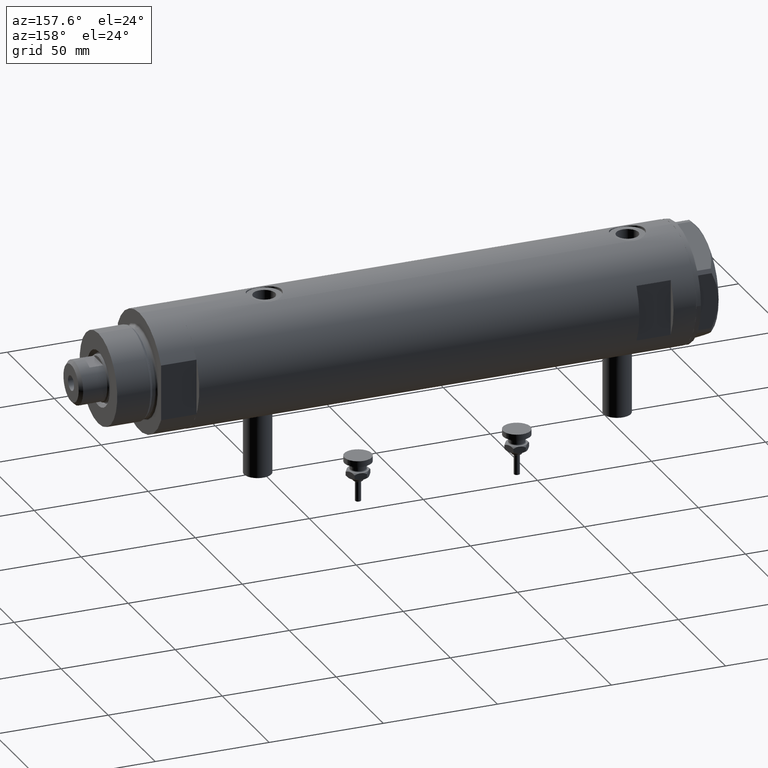
[diagram: clean part render]
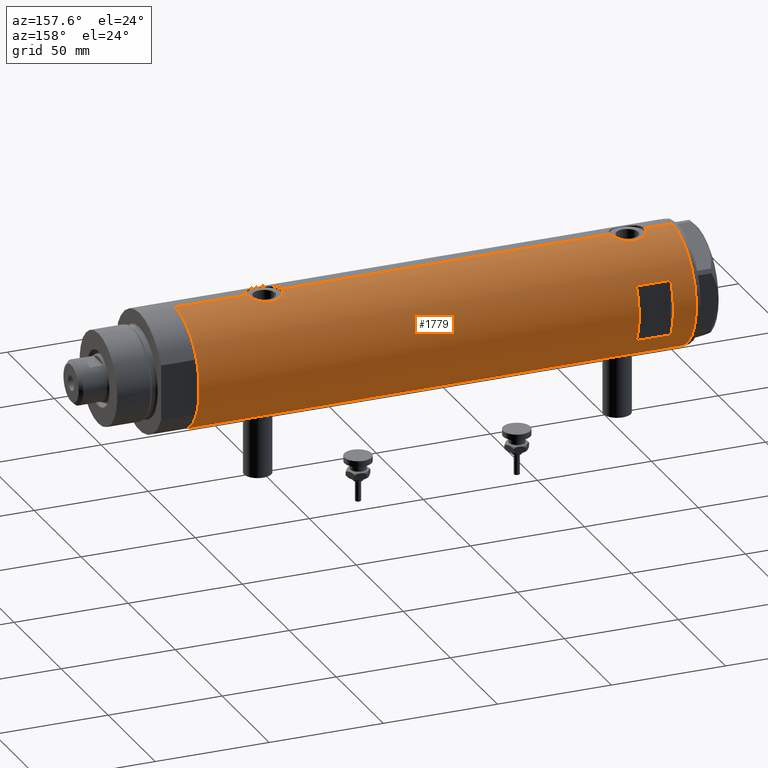
[diagram: same view with one face highlighted and labeled with its STEP entity id]
A machine part, auxiliary view. The second image highlights one B-rep face of the part: STEP entity #1779.
In plain terms, the highlighted cylindrical surface (partial cylindrical patch) has radius 26 mm, axis along (-1, -0, 0).
Its self-contained STEP definition (entity closure, byte-faithful):
#21 = CARTESIAN_POINT ( 'NONE',  ( -12.12435565298214080, 23.00000000000000355, 98.95000000000001705 ) ) ;
#42 = CIRCLE ( 'NONE', #1766, 26.00000000000000355 ) ;
#109 = CARTESIAN_POINT ( 'NONE',  ( -25.92257874449351718, 2.014648337067152184, -66.73003581636324100 ) ) ;
#145 = CARTESIAN_POINT ( 'NONE',  ( -26.00000000000000355, 1.227111019500118713E-15, -66.40000000000000568 ) ) ;
#179 = CARTESIAN_POINT ( 'NONE',  ( -25.27696731428695642, 6.089059008147561514, -71.22583693040516550 ) ) ;
#292 = CARTESIAN_POINT ( 'NONE',  ( -25.95208098418916975, 1.628413954368976846, -78.69806792170716392 ) ) ;
#304 = CARTESIAN_POINT ( 'NONE',  ( -26.00000000000000355, 3.184077527325983904E-15, -78.90000000000000568 ) ) ;
#329 = CARTESIAN_POINT ( 'NONE',  ( -25.52275868012768356, 4.960454986366445773, 81.14238370593368188 ) ) ;
#358 = CARTESIAN_POINT ( 'NONE',  ( 25.92799636947105668, 1.948138538329400093, 82.20322312211784777 ) ) ;
#366 = CARTESIAN_POINT ( 'NONE',  ( 24.97016856345951297, 7.245430721349229941, -71.70303040919394277 ) ) ;
#374 = EDGE_CURVE ( 'NONE', #609, #3577, #1414, .T. ) ;
#384 = CARTESIAN_POINT ( 'NONE',  ( 24.90976107960112529, 7.450765568638835212, 90.43882869351465104 ) ) ;
#392 = CARTESIAN_POINT ( 'NONE',  ( 25.94484652078418208, 1.709678645892024340, -77.05665346759174383 ) ) ;
#397 = CARTESIAN_POINT ( 'NONE',  ( -26.00000000000000355, 3.184081677783118585E-15, 108.9500000000000028 ) ) ;
#410 = CARTESIAN_POINT ( 'NONE',  ( 25.11550258961939619, 6.725017566862045548, 92.77928477806018748 ) ) ;
#413 = EDGE_CURVE ( 'NONE', #1022, #5285, #544, .T. ) ;
#420 = CARTESIAN_POINT ( 'NONE',  ( -25.99009688862344092, 0.8219492608955324409, 91.15915939226573528 ) ) ;
#422 = CARTESIAN_POINT ( 'NONE',  ( 26.00000000000001066, 0.2455784580650491045, -62.25000000000000000 ) ) ;
#457 = CARTESIAN_POINT ( 'NONE',  ( -25.23766275406408965, 6.249830297096023557, 85.36191904555117560 ) ) ;
#484 = DIRECTION ( 'NONE',  ( 1.000000000000000000, 0.000000000000000000, 0.000000000000000000 ) ) ;
#488 = EDGE_CURVE ( 'NONE', #5285, #6051, #3272, .T. ) ;
#507 = CARTESIAN_POINT ( 'NONE',  ( 25.97197502027376714, 1.230965554787594840, 96.85240824498376355 ) ) ;
#532 = AXIS2_PLACEMENT_3D ( 'NONE', #5348, #4924, #484 ) ;
#536 = CARTESIAN_POINT ( 'NONE',  ( 12.12435565298214080, 23.00000000000000355, 98.95000000000001705 ) ) ;
#544 = LINE ( 'NONE', #5884, #4281 ) ;
#609 = VERTEX_POINT ( 'NONE', #3044 ) ;
#612 = CARTESIAN_POINT ( 'NONE',  ( -25.81251897318926325, 3.135439098787735190, -67.22800821914826486 ) ) ;
#620 = DIRECTION ( 'NONE',  ( 0.000000000000000000, 0.000000000000000000, 1.000000000000000000 ) ) ;
#627 = CIRCLE ( 'NONE', #2983, 26.00000000000000355 ) ;
#643 = EDGE_CURVE ( 'NONE', #2773, #3577, #5437, .T. ) ;
#647 = CARTESIAN_POINT ( 'NONE',  ( -25.38675822915647728, 5.615881323213574028, -69.87693218337989265 ) ) ;
#654 = LINE ( 'NONE', #3686, #4918 ) ;
#703 = CARTESIAN_POINT ( 'NONE',  ( -25.95015815577422558, 1.621168830448743048, -66.61041429560181371 ) ) ;
#739 = LINE ( 'NONE', #2695, #2484 ) ;
#740 = CARTESIAN_POINT ( 'NONE',  ( -25.57167265924274702, 4.701795585128869526, -76.77276288310035568 ) ) ;
#746 = DIRECTION ( 'NONE',  ( 0.000000000000000000, 0.000000000000000000, 1.000000000000000000 ) ) ;
#749 = CARTESIAN_POINT ( 'NONE',  ( 25.17636585680005368, 6.493453152855892085, -65.98900750337199383 ) ) ;
#771 = CARTESIAN_POINT ( 'NONE',  ( -25.28673619335057055, 6.048783215285170378, -74.27550990348181870 ) ) ;
#782 = ORIENTED_EDGE ( 'NONE', *, *, #5178, .F. ) ;
#799 = CARTESIAN_POINT ( 'NONE',  ( -25.98789693408478740, 0.8193301824842001979, -78.84948980265349405 ) ) ;
#802 = ORIENTED_EDGE ( 'NONE', *, *, #3345, .T. ) ;
#805 = CARTESIAN_POINT ( 'NONE',  ( -25.67095236150574777, 4.133649689219788925, 89.65535228274261215 ) ) ;
#814 = CARTESIAN_POINT ( 'NONE',  ( -26.00000000000000355, 1.227111019500118713E-15, 91.20000000000000284 ) ) ;
#864 = CARTESIAN_POINT ( 'NONE',  ( 25.03487248886523275, 7.018875226450804306, 86.79576782607934149 ) ) ;
#871 = CARTESIAN_POINT ( 'NONE',  ( -25.28673619335055278, 6.048783215285170378, 83.32449009651818983 ) ) ;
#897 = CARTESIAN_POINT ( 'NONE',  ( -25.90661719257679607, 2.209805098346973029, 90.79988745781523107 ) ) ;
#899 = CARTESIAN_POINT ( 'NONE',  ( 25.89067367629246164, 2.424883365422559223, -62.63594795494831402 ) ) ;
#1017 = CARTESIAN_POINT ( 'NONE',  ( -26.00000000000000355, 3.184081677783118585E-15, -108.9500000000000028 ) ) ;
#1022 = VERTEX_POINT ( 'NONE', #536 ) ;
#1027 = CARTESIAN_POINT ( 'NONE',  ( 25.93077501166307641, 1.957027822413552220, -62.49302141437592439 ) ) ;
#1056 = CARTESIAN_POINT ( 'NONE',  ( 25.98255381630416849, 0.9836221648041321153, 96.88933098058195981 ) ) ;
#1092 = CARTESIAN_POINT ( 'NONE',  ( -25.59680708126579773, 4.563450671387936808, 80.67456050020027192 ) ) ;
#1093 = CARTESIAN_POINT ( 'NONE',  ( -26.00000000000001066, 0.4145874687851194285, -66.40000000000000568 ) ) ;
#1226 = CARTESIAN_POINT ( 'NONE',  ( 25.08669247833291394, 6.831361936037332327, -66.64462260596206988 ) ) ;
#1261 = CARTESIAN_POINT ( 'NONE',  ( 25.31017500740584580, 5.951503630041877102, -65.17950407362599208 ) ) ;
#1290 = CARTESIAN_POINT ( 'NONE',  ( -25.24784248027028966, 6.209126813737962713, 84.12731838311941601 ) ) ;
#1292 = CARTESIAN_POINT ( 'NONE',  ( 25.59528664075983428, 4.573671112500307778, -75.69909503516727511 ) ) ;
#1310 = CARTESIAN_POINT ( 'NONE',  ( 25.63006864069250668, 4.375159448492152769, 83.35345588241116843 ) ) ;
#1342 = CARTESIAN_POINT ( 'NONE',  ( 25.88814720404044323, 2.420758939209245675, 82.34711713171545000 ) ) ;
#1357 = CARTESIAN_POINT ( 'NONE',  ( 25.88814720404043968, 2.420758939209245231, -76.85288286828455284 ) ) ;
#1359 = VERTEX_POINT ( 'NONE', #3698 ) ;
#1377 = CARTESIAN_POINT ( 'NONE',  ( -26.00000000000000355, 0.2043916521039003675, -78.90000000000000568 ) ) ;
#1384 = CARTESIAN_POINT ( 'NONE',  ( -25.95015815577422913, 1.621168830448742826, 90.98958570439819482 ) ) ;
#1388 = CARTESIAN_POINT ( 'NONE',  ( 26.00000000000000355, -3.975028449552882818E-20, -62.24999999999999289 ) ) ;
#1404 = CARTESIAN_POINT ( 'NONE',  ( 24.97016856345952363, 7.245430721349229053, 87.49696959080610270 ) ) ;
#1405 = DIRECTION ( 'NONE',  ( 0.000000000000000000, 1.000000000000000000, -4.803849625781927035E-15 ) ) ;
#1414 = B_SPLINE_CURVE_WITH_KNOTS ( 'NONE', 3,
 ( #145, #1093, #5992, #5477, #703, #109, #2153, #3079, #612, #2087, #1606, #5539, #3558, #5023, #647, #2605, #3114, #4543, #179, #2123, #4064, #3332, #6175, #771, #4181, #1724, #4688, #3206, #2751, #4724, #2724, #740, #5759, #3715, #6109, #3235, #3300, #2218, #292, #4273, #799, #2243, #1377, #5151 ),
 .UNSPECIFIED., .F., .F.,
 ( 4, 2, 2, 2, 2, 2, 2, 2, 2, 2, 2, 2, 2, 2, 2, 2, 2, 2, 2, 2, 2, 4 ),
 ( 1.191872608207982896E-18, 0.001225774033668401188, 0.001838661050502596794, 0.002451548067336792400, 0.003677322101005198792, 0.004903096134673604750, 0.006128870168342011142, 0.007354644202010417534, 0.007967531218844622898, 0.008580418235678826527, 0.009806192269347190418, 0.01103196630301555604, 0.01225774033668391994, 0.01287062735351812356, 0.01348351437035232546, 0.01409640138718652735, 0.01470928840402073098, 0.01593506243768915906, 0.01716083647135759060, 0.01838661050502601868, 0.01899949752186023619, 0.01961238453869445023 ),
 .UNSPECIFIED. ) ;
#1467 = VERTEX_POINT ( 'NONE', #397 ) ;
#1478 = CARTESIAN_POINT ( 'NONE',  ( -25.98057228346869607, 1.024901789261878138, 78.78119414145170651 ) ) ;
#1480 = CARTESIAN_POINT ( 'NONE',  ( 25.97197502027376004, 1.230965554787593730, -62.34759175501625350 ) ) ;
#1485 = VERTEX_POINT ( 'NONE', #21 ) ;
#1500 = CARTESIAN_POINT ( 'NONE',  ( 25.72868876879095978, 3.768709330223698473, 95.95267486870062612 ) ) ;
#1508 = CARTESIAN_POINT ( 'NONE',  ( -25.92432690655987315, 2.018143994254077978, 79.02070577177285315 ) ) ;
#1544 = ORIENTED_EDGE ( 'NONE', *, *, #374, .F. ) ;
#1592 = EDGE_CURVE ( 'NONE', #3640, #1467, #3565, .T. ) ;
#1606 = CARTESIAN_POINT ( 'NONE',  ( -25.67095236150574067, 4.133649689219787149, -67.94464771725739638 ) ) ;
#1624 = FACE_BOUND ( 'NONE', #1632, .T. ) ;
#1632 = EDGE_LOOP ( 'NONE', ( #5749, #5793, #1973, #2715 ) ) ;
#1641 = LINE ( 'NONE', #2668, #4003 ) ;
#1696 = ORIENTED_EDGE ( 'NONE', *, *, #2625, .F. ) ;
#1707 = CARTESIAN_POINT ( 'NONE',  ( 24.89471231507667071, 7.500219916954801391, -69.26121773116975078 ) ) ;
#1724 = CARTESIAN_POINT ( 'NONE',  ( -25.36894112891956965, 5.694149517195237209, -75.23482505198309411 ) ) ;
#1732 = CARTESIAN_POINT ( 'NONE',  ( 25.20855488770172315, 6.367749707222650990, -65.77997776959041687 ) ) ;
#1740 = VECTOR ( 'NONE', #2100, 1000.000000000000000 ) ;
#1757 = CARTESIAN_POINT ( 'NONE',  ( 25.17424625143662809, 6.506691718592108487, 85.68758373966277020 ) ) ;
#1766 = AXIS2_PLACEMENT_3D ( 'NONE', #2547, #5638, #2319 ) ;
#1768 = CARTESIAN_POINT ( 'NONE',  ( 25.63006864069251378, 4.375159448492150105, -75.84654411758884862 ) ) ;
#1779 = ADVANCED_FACE ( 'NONE', ( #1624, #2654 ), #2173, .T. ) ;
#1792 = EDGE_CURVE ( 'NONE', #6071, #4497, #5592, .T. ) ;
#1794 = CARTESIAN_POINT ( 'NONE',  ( 26.00000000000000355, 1.142179864233347086E-15, 81.94999999999998863 ) ) ;
#1799 = CARTESIAN_POINT ( 'NONE',  ( -25.96182217530153480, 1.422664245316465959, 91.03935273092393743 ) ) ;
#1830 = CARTESIAN_POINT ( 'NONE',  ( 24.95233689475078265, 7.306396477445190385, -71.46103813146667960 ) ) ;
#1854 = CARTESIAN_POINT ( 'NONE',  ( 25.59528664075983428, 4.573671112500310443, 83.50090496483274194 ) ) ;
#1889 = CARTESIAN_POINT ( 'NONE',  ( 25.52465069878074644, 4.952713637311411787, 83.81255139184743541 ) ) ;
#1900 = CARTESIAN_POINT ( 'NONE',  ( 25.98255381630415073, 0.9836221648041368892, -62.31066901941806435 ) ) ;
#1959 = CARTESIAN_POINT ( 'NONE',  ( 25.59685363299823280, 4.579266302355757823, -63.79027931897347514 ) ) ;
#1973 = ORIENTED_EDGE ( 'NONE', *, *, #413, .F. ) ;
#1984 = DIRECTION ( 'NONE',  ( -0.000000000000000000, -0.000000000000000000, -1.000000000000000000 ) ) ;
#2020 = CARTESIAN_POINT ( 'NONE',  ( -25.99759026373432391, 0.4091325989570679389, 78.71000109955099333 ) ) ;
#2023 = EDGE_CURVE ( 'NONE', #2572, #6089, #3501, .T. ) ;
#2087 = CARTESIAN_POINT ( 'NONE',  ( -25.72105193281917934, 3.813738527046908189, -67.68166308900568140 ) ) ;
#2100 = DIRECTION ( 'NONE',  ( 0.000000000000000000, 0.000000000000000000, 1.000000000000000000 ) ) ;
#2123 = CARTESIAN_POINT ( 'NONE',  ( -25.24766879991036816, 6.209837761082653174, -71.83150430970304967 ) ) ;
#2124 = CARTESIAN_POINT ( 'NONE',  ( 12.12435565298213724, 23.00000000000000355, 83.95000000000003126 ) ) ;
#2142 = EDGE_CURVE ( 'NONE', #6051, #1485, #654, .T. ) ;
#2153 = CARTESIAN_POINT ( 'NONE',  ( -25.90661719257679252, 2.209805098346972585, -66.80011254218482009 ) ) ;
#2169 = EDGE_CURVE ( 'NONE', #609, #3141, #1641, .T. ) ;
#2173 = CYLINDRICAL_SURFACE ( 'NONE', #5633, 26.00000000000000355 ) ;
#2218 = CARTESIAN_POINT ( 'NONE',  ( -25.92432690655987670, 2.018143994254067319, -78.57929422822714116 ) ) ;
#2243 = CARTESIAN_POINT ( 'NONE',  ( -25.99759026373432391, 0.4091325989570675503, -78.88999890044902941 ) ) ;
#2253 = CARTESIAN_POINT ( 'NONE',  ( 26.00000000000000355, 0.4983968644076023913, -77.25000000000000000 ) ) ;
#2312 = CARTESIAN_POINT ( 'NONE',  ( 25.48882460966380847, 5.133289275481220493, 83.97656476402089254 ) ) ;
#2317 = CARTESIAN_POINT ( 'NONE',  ( -25.52242378584899640, 4.965907353613394193, 88.76719602921738783 ) ) ;
#2319 = DIRECTION ( 'NONE',  ( 1.000000000000000000, -5.329070518200751394E-15, 0.000000000000000000 ) ) ;
#2337 = CARTESIAN_POINT ( 'NONE',  ( 25.00820649268565532, 7.115348876445601434, 91.87184000475454582 ) ) ;
#2344 = CARTESIAN_POINT ( 'NONE',  ( 24.90951684770587704, 7.451587374037550227, -70.73395604521196844 ) ) ;
#2365 = CARTESIAN_POINT ( 'NONE',  ( 25.72923282622329211, 3.765147152416750131, 82.94514424215292081 ) ) ;
#2369 = EDGE_CURVE ( 'NONE', #3640, #3141, #3682, .T. ) ;
#2376 = CARTESIAN_POINT ( 'NONE',  ( -25.72105193281917579, 3.813738527046907745, 89.91833691099431292 ) ) ;
#2378 = EDGE_CURVE ( 'NONE', #4497, #1467, #3393, .T. ) ;
#2401 = CARTESIAN_POINT ( 'NONE',  ( 26.00000000000000355, -3.975030973907779525E-20, 96.95000000000000284 ) ) ;
#2438 = CARTESIAN_POINT ( 'NONE',  ( -25.85449082491264150, 2.772892880050696007, 79.33390702514675752 ) ) ;
#2462 = CARTESIAN_POINT ( 'NONE',  ( 25.59685363299822569, 4.579266302355758711, 95.40972068102654191 ) ) ;
#2463 = DIRECTION ( 'NONE',  ( 0.000000000000000000, 4.625929269271486900E-15, 1.000000000000000000 ) ) ;
#2484 = VECTOR ( 'NONE', #4633, 1000.000000000000000 ) ;
#2533 = B_SPLINE_CURVE_WITH_KNOTS ( 'NONE', 3,
 ( #1794, #2880, #3741, #6272, #358, #1342, #3831, #3768, #2365, #1310, #1854, #1889, #2312, #5789, #5725, #1757, #3299, #864, #4755, #1404, #5305, #4820, #4783, #5274, #384, #4180, #2337, #4272, #410, #6235, #3800, #5758, #6137, #3714, #5663, #3425, #2462, #1500, #4465, #4404, #5372, #507, #1056, #3923, #5339, #2401 ),
 .UNSPECIFIED., .F., .F.,
 ( 4, 2, 2, 2, 2, 2, 2, 2, 2, 2, 2, 2, 2, 2, 2, 2, 2, 2, 2, 2, 2, 2, 4 ),
 ( 1.109123384753006195E-18, 0.001473395154583141816, 0.002210092731874708279, 0.002946790309166274525, 0.004420185463749423498, 0.005156883041040996249, 0.005893580618332569000, 0.007366975772915686747, 0.008840370927498805362, 0.009577068504790344286, 0.01031376608208188494, 0.01178716123666492463, 0.01326055639124796431, 0.01473395154583100573, 0.01547064912312250649, 0.01620734670041400205, 0.01694404427770550628, 0.01768074185499700357, 0.01915413700957997734, 0.02062753216416295110, 0.02210092731874592140, 0.02283762489603740828, 0.02357432247332889169 ),
 .UNSPECIFIED. ) ;
#2547 = CARTESIAN_POINT ( 'NONE',  ( 0.000000000000000000, 0.000000000000000000, 98.95000000000001705 ) ) ;
#2572 = VERTEX_POINT ( 'NONE', #2635 ) ;
#2581 = CARTESIAN_POINT ( 'NONE',  ( -26.00000000000000355, 3.184081677783118585E-15, -108.9500000000000028 ) ) ;
#2594 = CARTESIAN_POINT ( 'NONE',  ( 26.00000000000000355, 0.000000000000000000, -108.9500000000000028 ) ) ;
#2605 = CARTESIAN_POINT ( 'NONE',  ( -25.33346170681504361, 5.849967696906721137, -70.44052947900497941 ) ) ;
#2625 = EDGE_CURVE ( 'NONE', #1359, #2735, #739, .T. ) ;
#2630 = CARTESIAN_POINT ( 'NONE',  ( -26.00000000000000355, 3.184081677783118585E-15, -108.9500000000000028 ) ) ;
#2635 = CARTESIAN_POINT ( 'NONE',  ( 26.00000000000000355, -3.975028449552882818E-20, -62.24999999999999289 ) ) ;
#2654 = FACE_OUTER_BOUND ( 'NONE', #4207, .T. ) ;
#2657 = DIRECTION ( 'NONE',  ( 0.000000000000000000, 0.000000000000000000, 1.000000000000000000 ) ) ;
#2668 = CARTESIAN_POINT ( 'NONE',  ( -26.00000000000000355, 3.184081677783118585E-15, -108.9500000000000028 ) ) ;
#2695 = CARTESIAN_POINT ( 'NONE',  ( 26.00000000000000355, 0.000000000000000000, -108.9500000000000028 ) ) ;
#2715 = ORIENTED_EDGE ( 'NONE', *, *, #5096, .F. ) ;
#2724 = CARTESIAN_POINT ( 'NONE',  ( -25.52275868012767646, 4.960454986366444885, -76.45761629406632665 ) ) ;
#2733 = CARTESIAN_POINT ( 'NONE',  ( 25.98569222077104257, 0.9879514382926418703, -77.20081846687564564 ) ) ;
#2735 = VERTEX_POINT ( 'NONE', #6174 ) ;
#2748 = EDGE_CURVE ( 'NONE', #6089, #6071, #2533, .T. ) ;
#2751 = CARTESIAN_POINT ( 'NONE',  ( -25.45277932469920756, 5.307477387851102790, -75.95672800165310434 ) ) ;
#2758 = CARTESIAN_POINT ( 'NONE',  ( -25.38875076695534361, 5.605452563035131064, 82.17814099175892295 ) ) ;
#2773 = VERTEX_POINT ( 'NONE', #1017 ) ;
#2794 = CARTESIAN_POINT ( 'NONE',  ( -25.57189498399054983, 4.707763994471525493, 89.08090281055548587 ) ) ;
#2827 = CARTESIAN_POINT ( 'NONE',  ( -25.36894112891957320, 5.694149517195235433, 82.36517494801691441 ) ) ;
#2855 = CARTESIAN_POINT ( 'NONE',  ( -25.85406084573621754, 2.777003695811651962, 90.56412841326093144 ) ) ;
#2857 = CARTESIAN_POINT ( 'NONE',  ( 25.78997056644823971, 3.329333406239046056, -63.01165191566149559 ) ) ;
#2880 = CARTESIAN_POINT ( 'NONE',  ( 26.00000000000000000, 0.4983968644076025023, 81.95000000000000284 ) ) ;
#2893 = CARTESIAN_POINT ( 'NONE',  ( -25.33346170681504361, 5.849967696906720249, 87.15947052099507175 ) ) ;
#2983 = AXIS2_PLACEMENT_3D ( 'NONE', #5808, #4905, #4394 ) ;
#3044 = CARTESIAN_POINT ( 'NONE',  ( -26.00000000000000355, 1.227111019500118713E-15, -66.40000000000000568 ) ) ;
#3079 = CARTESIAN_POINT ( 'NONE',  ( -25.85406084573620689, 2.777003695811651962, -67.03587158673903446 ) ) ;
#3114 = CARTESIAN_POINT ( 'NONE',  ( -25.31738333113900907, 5.918941409682878074, -70.63242077527678475 ) ) ;
#3141 = VERTEX_POINT ( 'NONE', #5656 ) ;
#3161 = DIRECTION ( 'NONE',  ( 0.000000000000000000, 0.000000000000000000, 1.000000000000000000 ) ) ;
#3180 = CARTESIAN_POINT ( 'NONE',  ( 25.11550258961939264, 6.725017566862044660, -66.42071522193982958 ) ) ;
#3206 = CARTESIAN_POINT ( 'NONE',  ( -25.43062364804611875, 5.412314182902751014, -75.78227648580933362 ) ) ;
#3230 = CARTESIAN_POINT ( 'NONE',  ( 26.00000000000000355, 0.000000000000000000, 108.9500000000000028 ) ) ;
#3235 = CARTESIAN_POINT ( 'NONE',  ( -25.81206132723605862, 3.139065735901515275, -78.06978769360878800 ) ) ;
#3241 = CARTESIAN_POINT ( 'NONE',  ( -25.31518616157687518, 5.930210831981638009, 82.93412882792975438 ) ) ;
#3243 = CARTESIAN_POINT ( 'NONE',  ( 25.38132706741445688, 5.649034551923791447, -74.70731952814048782 ) ) ;
#3272 = CIRCLE ( 'NONE', #3778, 26.00000000000000355 ) ;
#3299 = CARTESIAN_POINT ( 'NONE',  ( 25.11254978876589661, 6.737777305585169962, 86.11974648253587361 ) ) ;
#3300 = CARTESIAN_POINT ( 'NONE',  ( -25.85449082491265571, 2.772892880050684017, -78.26609297485326522 ) ) ;
#3332 = CARTESIAN_POINT ( 'NONE',  ( -25.23757896588369931, 6.250168635417630014, -73.05675308410499724 ) ) ;
#3345 = EDGE_CURVE ( 'NONE', #1359, #2773, #627, .T. ) ;
#3359 = ORIENTED_EDGE ( 'NONE', *, *, #2169, .T. ) ;
#3377 = VECTOR ( 'NONE', #2657, 1000.000000000000000 ) ;
#3390 = CARTESIAN_POINT ( 'NONE',  ( 0.000000000000000000, 0.000000000000000000, 83.95000000000011653 ) ) ;
#3393 = CIRCLE ( 'NONE', #532, 26.00000000000000355 ) ;
#3396 = CARTESIAN_POINT ( 'NONE',  ( -12.12435565298214080, 23.00000000000000355, 83.95000000000003126 ) ) ;
#3425 = CARTESIAN_POINT ( 'NONE',  ( 25.52590365620542912, 4.955152228772157663, 95.10123727588242559 ) ) ;
#3434 = CARTESIAN_POINT ( 'NONE',  ( -26.00000000000000000, 0.2043916521039007284, 78.69999999999998863 ) ) ;
#3438 = CARTESIAN_POINT ( 'NONE',  ( 25.72868876879095978, 3.768709330223699361, -63.24732513129934119 ) ) ;
#3501 = LINE ( 'NONE', #3534, #4911 ) ;
#3534 = CARTESIAN_POINT ( 'NONE',  ( 26.00000000000000355, 0.000000000000000000, -108.9500000000000028 ) ) ;
#3558 = CARTESIAN_POINT ( 'NONE',  ( -25.52242378584899640, 4.965907353613394193, -68.83280397078264912 ) ) ;
#3565 = LINE ( 'NONE', #2581, #1740 ) ;
#3576 = CARTESIAN_POINT ( 'NONE',  ( 0.000000000000000000, 0.000000000000000000, -108.9500000000000028 ) ) ;
#3577 = VERTEX_POINT ( 'NONE', #304 ) ;
#3640 = VERTEX_POINT ( 'NONE', #814 ) ;
#3660 = CARTESIAN_POINT ( 'NONE',  ( 24.90976107960112529, 7.450765568638834324, -68.76117130648536602 ) ) ;
#3682 = B_SPLINE_CURVE_WITH_KNOTS ( 'NONE', 3,
 ( #4315, #5767, #420, #1799, #1384, #5281, #897, #2855, #5734, #2376, #805, #2794, #2317, #6282, #4251, #2893, #4828, #6215, #3776, #5252, #457, #3864, #1290, #871, #3241, #2827, #2758, #4762, #5185, #4696, #329, #4222, #1092, #5920, #4961, #4988, #2438, #1508, #3997, #1478, #4375, #2020, #3434, #3898 ),
 .UNSPECIFIED., .F., .F.,
 ( 4, 2, 2, 2, 2, 2, 2, 2, 2, 2, 2, 2, 2, 2, 2, 2, 2, 2, 2, 2, 2, 4 ),
 ( 1.191872608207982896E-18, 0.001225774033668414415, 0.001838661050502624766, 0.002451548067336834901, 0.003677322101005254303, 0.004903096134673673272, 0.006128870168342093541, 0.007354644202010512943, 0.007967531218844704430, 0.008580418235678894182, 0.009806192269347313584, 0.01103196630301573472, 0.01225774033668415586, 0.01287062735351834561, 0.01348351437035253536, 0.01409640138718672858, 0.01470928840402092007, 0.01593506243768930131, 0.01716083647135768081, 0.01838661050502606725, 0.01899949752186025700, 0.01961238453869444676 ),
 .UNSPECIFIED. ) ;
#3686 = CARTESIAN_POINT ( 'NONE',  ( -12.12435565298214080, 23.00000000000000355, -108.9500000000000028 ) ) ;
#3689 = CARTESIAN_POINT ( 'NONE',  ( 25.27545867390323764, 6.096774941222101063, -65.37522593042032781 ) ) ;
#3698 = CARTESIAN_POINT ( 'NONE',  ( 26.00000000000000355, 0.000000000000000000, -108.9500000000000028 ) ) ;
#3714 = CARTESIAN_POINT ( 'NONE',  ( 25.38117076385347204, 5.641057083563605801, 94.39856579741848464 ) ) ;
#3715 = CARTESIAN_POINT ( 'NONE',  ( -25.67176285215958487, 4.128807479817783843, -77.35991598451124673 ) ) ;
#3741 = CARTESIAN_POINT ( 'NONE',  ( 25.98569222077104968, 0.9879514382926425364, 81.99918153312438562 ) ) ;
#3768 = CARTESIAN_POINT ( 'NONE',  ( 25.78922176490237916, 3.335318700939514880, 82.71449431233524763 ) ) ;
#3776 = CARTESIAN_POINT ( 'NONE',  ( -25.27696731428695998, 6.089059008147561514, 86.37416306959481460 ) ) ;
#3778 = AXIS2_PLACEMENT_3D ( 'NONE', #3390, #2463, #1405 ) ;
#3779 = CARTESIAN_POINT ( 'NONE',  ( 24.89484527721568696, 7.499778575171907491, -70.24550805482940063 ) ) ;
#3800 = CARTESIAN_POINT ( 'NONE',  ( 25.20855488770171604, 6.367749707222649214, 93.42002223040957176 ) ) ;
#3812 = CARTESIAN_POINT ( 'NONE',  ( 25.99652140603931727, 0.4914164889130587244, -62.26203179519543340 ) ) ;
#3831 = CARTESIAN_POINT ( 'NONE',  ( 25.86510134953875450, 2.654921787384018739, 82.43132938305093660 ) ) ;
#3842 = ORIENTED_EDGE ( 'NONE', *, *, #1792, .F. ) ;
#3857 = ORIENTED_EDGE ( 'NONE', *, *, #2748, .F. ) ;
#3864 = CARTESIAN_POINT ( 'NONE',  ( -25.23757896588369576, 6.250168635417627350, 84.54324691589501128 ) ) ;
#3867 = B_SPLINE_CURVE_WITH_KNOTS ( 'NONE', 3,
 ( #4733, #2253, #2733, #392, #4224, #1357, #5160, #4669, #4190, #1768, #1292, #5255, #5674, #3243, #6184, #4162, #4253, #4698, #5188, #366, #1830, #2344, #3779, #1707, #3660, #5606, #6116, #1226, #3180, #749, #1732, #3689, #1261, #5769, #5797, #4792, #1959, #3438, #2857, #899, #1027, #1480, #1900, #3812, #422, #1388 ),
 .UNSPECIFIED., .F., .F.,
 ( 4, 2, 2, 2, 2, 2, 2, 2, 2, 2, 2, 2, 2, 2, 2, 2, 2, 2, 2, 2, 2, 2, 4 ),
 ( 3.063710492572517602E-19, 0.001473395154583137480, 0.002210092731874702641, 0.002946790309166267153, 0.004420185463749410487, 0.005156883041040983238, 0.005893580618332555990, 0.007366975772915672870, 0.008840370927498791484, 0.009577068504790330408, 0.01031376608208186933, 0.01178716123666491075, 0.01326055639124795044, 0.01473395154583099012, 0.01547064912312249088, 0.01620734670041399164, 0.01694404427770549240, 0.01768074185499699316, 0.01915413700957996693, 0.02062753216416294069, 0.02210092731874591793, 0.02283762489603740134, 0.02357432247332888822 ),
 .UNSPECIFIED. ) ;
#3898 = CARTESIAN_POINT ( 'NONE',  ( -26.00000000000000355, 3.184077527313362130E-15, 78.69999999999998863 ) ) ;
#3923 = CARTESIAN_POINT ( 'NONE',  ( 25.99652140603930306, 0.4914164889130540614, 96.93796820480460497 ) ) ;
#3997 = CARTESIAN_POINT ( 'NONE',  ( -25.95208098418916975, 1.628413954368974625, 78.90193207829285882 ) ) ;
#4003 = VECTOR ( 'NONE', #4641, 1000.000000000000000 ) ;
#4064 = CARTESIAN_POINT ( 'NONE',  ( -25.23766275406408965, 6.249830297096023557, -72.23808095444880450 ) ) ;
#4112 = DIRECTION ( 'NONE',  ( 1.000000000000000000, 0.000000000000000000, 0.000000000000000000 ) ) ;
#4162 = CARTESIAN_POINT ( 'NONE',  ( 25.17424625143662098, 6.506691718592107598, -73.51241626033730370 ) ) ;
#4180 = CARTESIAN_POINT ( 'NONE',  ( 24.96662810169870284, 7.257932614256881187, 91.40297309526737024 ) ) ;
#4181 = CARTESIAN_POINT ( 'NONE',  ( -25.31518616157687518, 5.930210831981638009, -74.66587117207023994 ) ) ;
#4190 = CARTESIAN_POINT ( 'NONE',  ( 25.72923282622328500, 3.765147152416744802, -76.25485575784709624 ) ) ;
#4207 = EDGE_LOOP ( 'NONE', ( #802, #5346, #1544, #3359, #5149, #5482, #4787, #3842, #3857, #4808, #782, #1696 ) ) ;
#4222 = CARTESIAN_POINT ( 'NONE',  ( -25.57167265924275057, 4.701795585128869526, 80.82723711689963864 ) ) ;
#4224 = CARTESIAN_POINT ( 'NONE',  ( 25.92799636947105313, 1.948138538329398539, -76.99677687788214087 ) ) ;
#4251 = CARTESIAN_POINT ( 'NONE',  ( -25.38675822915647728, 5.615881323213574028, 87.72306781662007324 ) ) ;
#4253 = CARTESIAN_POINT ( 'NONE',  ( 25.11254978876589306, 6.737777305585169074, -73.08025351746414344 ) ) ;
#4272 = CARTESIAN_POINT ( 'NONE',  ( 25.08669247833291749, 6.831361936037331439, 92.55537739403790454 ) ) ;
#4273 = CARTESIAN_POINT ( 'NONE',  ( -25.98057228346869607, 1.024901789261876139, -78.81880585854824517 ) ) ;
#4281 = VECTOR ( 'NONE', #1984, 1000.000000000000000 ) ;
#4315 = CARTESIAN_POINT ( 'NONE',  ( -26.00000000000000355, 1.227111019500118713E-15, 91.20000000000000284 ) ) ;
#4375 = CARTESIAN_POINT ( 'NONE',  ( -25.98789693408479096, 0.8193301824841990877, 78.75051019734652868 ) ) ;
#4394 = DIRECTION ( 'NONE',  ( 1.000000000000000000, 0.000000000000000000, 0.000000000000000000 ) ) ;
#4404 = CARTESIAN_POINT ( 'NONE',  ( 25.89067367629247229, 2.424883365422557002, 96.56405204505172435 ) ) ;
#4465 = CARTESIAN_POINT ( 'NONE',  ( 25.78997056644825037, 3.329333406239041615, 96.18834808433848593 ) ) ;
#4497 = VERTEX_POINT ( 'NONE', #3230 ) ;
#4543 = CARTESIAN_POINT ( 'NONE',  ( -25.28915991580760192, 6.038390257328910771, -71.02447348853092990 ) ) ;
#4591 = DIRECTION ( 'NONE',  ( 0.000000000000000000, 0.000000000000000000, 1.000000000000000000 ) ) ;
#4604 = VECTOR ( 'NONE', #3161, 1000.000000000000000 ) ;
#4633 = DIRECTION ( 'NONE',  ( 0.000000000000000000, 0.000000000000000000, 1.000000000000000000 ) ) ;
#4641 = DIRECTION ( 'NONE',  ( 0.000000000000000000, 0.000000000000000000, 1.000000000000000000 ) ) ;
#4669 = CARTESIAN_POINT ( 'NONE',  ( 25.78922176490238627, 3.335318700939514436, -76.48550568766478364 ) ) ;
#4688 = CARTESIAN_POINT ( 'NONE',  ( -25.38875076695533650, 5.605452563035129288, -75.42185900824102873 ) ) ;
#4696 = CARTESIAN_POINT ( 'NONE',  ( -25.49884629689154281, 5.081547904122039938, 81.30560194303910748 ) ) ;
#4698 = CARTESIAN_POINT ( 'NONE',  ( 25.03487248886523275, 7.018875226450806082, -72.40423217392066135 ) ) ;
#4724 = CARTESIAN_POINT ( 'NONE',  ( -25.49884629689153215, 5.081547904122039938, -76.29439805696090104 ) ) ;
#4733 = CARTESIAN_POINT ( 'NONE',  ( 26.00000000000000355, 3.155021778966484351E-16, -77.25000000000001421 ) ) ;
#4755 = CARTESIAN_POINT ( 'NONE',  ( 25.01140519645288762, 7.101774040639633689, 87.02607764299175130 ) ) ;
#4762 = CARTESIAN_POINT ( 'NONE',  ( -25.43062364804611875, 5.412314182902751902, 81.81772351419066069 ) ) ;
#4783 = CARTESIAN_POINT ( 'NONE',  ( 24.89484527721567986, 7.499778575171907491, 88.95449194517063063 ) ) ;
#4787 = ORIENTED_EDGE ( 'NONE', *, *, #2378, .F. ) ;
#4792 = CARTESIAN_POINT ( 'NONE',  ( 25.52590365620542912, 4.955152228772157663, -64.09876272411760567 ) ) ;
#4808 = ORIENTED_EDGE ( 'NONE', *, *, #2023, .F. ) ;
#4820 = CARTESIAN_POINT ( 'NONE',  ( 24.90951684770588059, 7.451587374037549338, 88.46604395478804861 ) ) ;
#4828 = CARTESIAN_POINT ( 'NONE',  ( -25.31738333113901263, 5.918941409682878074, 86.96757922472318114 ) ) ;
#4857 = CARTESIAN_POINT ( 'NONE',  ( 26.00000000000000355, 1.142179864233347086E-15, 81.94999999999998863 ) ) ;
#4905 = DIRECTION ( 'NONE',  ( 0.000000000000000000, 0.000000000000000000, 1.000000000000000000 ) ) ;
#4911 = VECTOR ( 'NONE', #620, 1000.000000000000000 ) ;
#4918 = VECTOR ( 'NONE', #746, 1000.000000000000000 ) ;
#4924 = DIRECTION ( 'NONE',  ( 0.000000000000000000, 0.000000000000000000, 1.000000000000000000 ) ) ;
#4961 = CARTESIAN_POINT ( 'NONE',  ( -25.72087293759779669, 3.814831448865735997, 79.98261705172140523 ) ) ;
#4988 = CARTESIAN_POINT ( 'NONE',  ( -25.81206132723604796, 3.139065735901513055, 79.53021230639120631 ) ) ;
#5023 = CARTESIAN_POINT ( 'NONE',  ( -25.42927140605242542, 5.422776733968215801, -69.51556003986718224 ) ) ;
#5096 = EDGE_CURVE ( 'NONE', #1485, #1022, #42, .T. ) ;
#5149 = ORIENTED_EDGE ( 'NONE', *, *, #2369, .F. ) ;
#5151 = CARTESIAN_POINT ( 'NONE',  ( -26.00000000000000355, 3.184077527325983904E-15, -78.90000000000000568 ) ) ;
#5160 = CARTESIAN_POINT ( 'NONE',  ( 25.86510134953875450, 2.654921787384016518, -76.76867061694905203 ) ) ;
#5178 = EDGE_CURVE ( 'NONE', #2735, #2572, #3867, .T. ) ;
#5185 = CARTESIAN_POINT ( 'NONE',  ( -25.45277932469920046, 5.307477387851101014, 81.64327199834687576 ) ) ;
#5188 = CARTESIAN_POINT ( 'NONE',  ( 25.01140519645288407, 7.101774040639634578, -72.17392235700825154 ) ) ;
#5252 = CARTESIAN_POINT ( 'NONE',  ( -25.24766879991037172, 6.209837761082654062, 85.76849569029695886 ) ) ;
#5255 = CARTESIAN_POINT ( 'NONE',  ( 25.52465069878074644, 4.952713637311410011, -75.38744860815259585 ) ) ;
#5274 = CARTESIAN_POINT ( 'NONE',  ( 24.89471231507666715, 7.500219916954801391, 89.93878226883029470 ) ) ;
#5281 = CARTESIAN_POINT ( 'NONE',  ( -25.92257874449350652, 2.014648337067151296, 90.86996418363678174 ) ) ;
#5285 = VERTEX_POINT ( 'NONE', #2124 ) ;
#5305 = CARTESIAN_POINT ( 'NONE',  ( 24.95233689475078975, 7.306396477445192161, 87.73896186853338008 ) ) ;
#5339 = CARTESIAN_POINT ( 'NONE',  ( 25.99999999999999289, 0.2455784580650480498, 96.94999999999996021 ) ) ;
#5346 = ORIENTED_EDGE ( 'NONE', *, *, #643, .T. ) ;
#5348 = CARTESIAN_POINT ( 'NONE',  ( 0.000000000000000000, 0.000000000000000000, 108.9500000000000028 ) ) ;
#5372 = CARTESIAN_POINT ( 'NONE',  ( 25.93077501166307997, 1.957027822413550000, 96.70697858562412819 ) ) ;
#5437 = LINE ( 'NONE', #2630, #3377 ) ;
#5477 = CARTESIAN_POINT ( 'NONE',  ( -25.96182217530152769, 1.422664245316465736, -66.56064726907608531 ) ) ;
#5482 = ORIENTED_EDGE ( 'NONE', *, *, #1592, .T. ) ;
#5539 = CARTESIAN_POINT ( 'NONE',  ( -25.57189498399055694, 4.707763994471526381, -68.51909718944453687 ) ) ;
#5592 = LINE ( 'NONE', #2594, #4604 ) ;
#5606 = CARTESIAN_POINT ( 'NONE',  ( 24.96662810169869928, 7.257932614256882076, -67.79702690473266102 ) ) ;
#5633 = AXIS2_PLACEMENT_3D ( 'NONE', #3576, #4591, #4112 ) ;
#5638 = DIRECTION ( 'NONE',  ( -0.000000000000000000, -0.000000000000000000, -1.000000000000000000 ) ) ;
#5656 = CARTESIAN_POINT ( 'NONE',  ( -26.00000000000000355, 3.184077527313362130E-15, 78.69999999999998863 ) ) ;
#5663 = CARTESIAN_POINT ( 'NONE',  ( 25.41763780493359803, 5.474943943663465262, 94.58176313788933953 ) ) ;
#5674 = CARTESIAN_POINT ( 'NONE',  ( 25.48882460966381203, 5.133289275481222269, -75.22343523597911030 ) ) ;
#5725 = CARTESIAN_POINT ( 'NONE',  ( 25.30960479024496479, 5.958491152160530824, 84.86860322320038108 ) ) ;
#5734 = CARTESIAN_POINT ( 'NONE',  ( -25.81251897318926680, 3.135439098787735190, 90.37199178085172946 ) ) ;
#5749 = ORIENTED_EDGE ( 'NONE', *, *, #2142, .F. ) ;
#5758 = CARTESIAN_POINT ( 'NONE',  ( 25.27545867390324474, 6.096774941222101951, 93.82477406957971766 ) ) ;
#5759 = CARTESIAN_POINT ( 'NONE',  ( -25.59680708126579773, 4.563450671387937696, -76.92543949979970819 ) ) ;
#5767 = CARTESIAN_POINT ( 'NONE',  ( -26.00000000000000711, 0.4145874687851191509, 91.20000000000001705 ) ) ;
#5769 = CARTESIAN_POINT ( 'NONE',  ( 25.38117076385347559, 5.641057083563609353, -64.80143420258154663 ) ) ;
#5789 = CARTESIAN_POINT ( 'NONE',  ( 25.38132706741445688, 5.649034551923790559, 84.49268047185954345 ) ) ;
#5793 = ORIENTED_EDGE ( 'NONE', *, *, #488, .F. ) ;
#5797 = CARTESIAN_POINT ( 'NONE',  ( 25.41763780493360869, 5.474943943663467039, -64.61823686211067752 ) ) ;
#5808 = CARTESIAN_POINT ( 'NONE',  ( 0.000000000000000000, 0.000000000000000000, -108.9500000000000028 ) ) ;
#5884 = CARTESIAN_POINT ( 'NONE',  ( 12.12435565298214080, 23.00000000000000355, -108.9500000000000028 ) ) ;
#5920 = CARTESIAN_POINT ( 'NONE',  ( -25.67176285215957776, 4.128807479817784731, 80.24008401548879021 ) ) ;
#5992 = CARTESIAN_POINT ( 'NONE',  ( -25.99009688862344092, 0.8219492608955326629, -66.44084060773425904 ) ) ;
#6051 = VERTEX_POINT ( 'NONE', #3396 ) ;
#6071 = VERTEX_POINT ( 'NONE', #6308 ) ;
#6089 = VERTEX_POINT ( 'NONE', #4857 ) ;
#6109 = CARTESIAN_POINT ( 'NONE',  ( -25.72087293759780380, 3.814831448865738661, -77.61738294827860329 ) ) ;
#6116 = CARTESIAN_POINT ( 'NONE',  ( 25.00820649268564466, 7.115348876445598769, -67.32815999524548545 ) ) ;
#6137 = CARTESIAN_POINT ( 'NONE',  ( 25.31017500740585291, 5.951503630041879767, 94.02049592637402498 ) ) ;
#6174 = CARTESIAN_POINT ( 'NONE',  ( 26.00000000000000355, 3.155021778966484351E-16, -77.25000000000001421 ) ) ;
#6175 = CARTESIAN_POINT ( 'NONE',  ( -25.24784248027028966, 6.209126813737962713, -73.47268161688060673 ) ) ;
#6184 = CARTESIAN_POINT ( 'NONE',  ( 25.30960479024496834, 5.958491152160531712, -74.33139677679966439 ) ) ;
#6215 = CARTESIAN_POINT ( 'NONE',  ( -25.28915991580760192, 6.038390257328910771, 86.57552651146907863 ) ) ;
#6235 = CARTESIAN_POINT ( 'NONE',  ( 25.17636585680005368, 6.493453152855889421, 93.21099249662803743 ) ) ;
#6272 = CARTESIAN_POINT ( 'NONE',  ( 25.94484652078419273, 1.709678645892025228, 82.14334653240821638 ) ) ;
#6282 = CARTESIAN_POINT ( 'NONE',  ( -25.42927140605242187, 5.422776733968214025, 88.08443996013284050 ) ) ;
#6308 = CARTESIAN_POINT ( 'NONE',  ( 26.00000000000000355, -3.975030973907779525E-20, 96.95000000000000284 ) ) ;